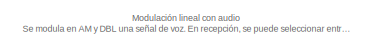
[diagram: root canvas - part 1/2, top left region]
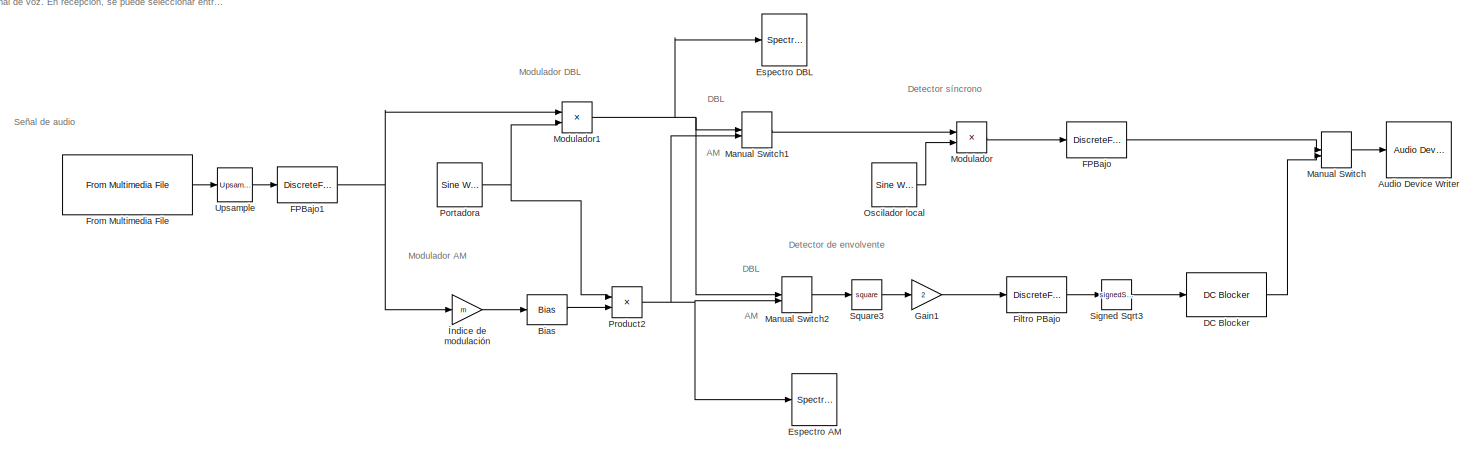
[diagram: root canvas - part 2/2, most of the canvas]
MODEL slx_1365be8a9c57
KIND model
CONFIG AbsTol = auto
CONFIG EnableMultiTasking = off
CONFIG FixedStep = auto
CONFIG MaxStep = auto
CONFIG MinStep = auto
CONFIG RelTol = 1e-3
CONFIG SampleTimeConstraint = Unconstrained
CONFIG SolverName = VariableStepAuto
CONFIG StartTime = 0.0
CONFIG StopTime = Inf
WORKSPACE source: mxarray member
WORKSPACE fp = 30000
WORKSPACE fs = 22050
WORKSPACE k = 5
WORKSPACE m = 0.8
BLOCK [Reference] Audio Device Writer  REF=dspsnks4/Audio Device
Writer
  SourceBlock = dspsnks4/Audio Device\nWriter
  SourceType = Audio Device Writer
BLOCK [Bias] Bias
  Bias = 1
  SaturateOnIntegerOverflow = off
BLOCK [Reference] DC Blocker  REF=dspsigops/DC Blocker
  SourceBlock = dspsigops/DC Blocker
  SourceType = dsp.simulink.DCBlocker
BLOCK [SpectrumAnalyzer] Espectro AM
  ScopeSpecificationString = spbscopes.SpectrumAnalyzerBlockCfg('CurrentConfiguration', extmgr.ConfigurationSet(extmgr.Configuration('Core','General UI',true),extmgr.Configuration('Core','Source UI',true),extmgr.Configuration('Sources','WiredSimulink',true),extmgr.Configuration('Visuals','Spectrum',true,'AxesProperties',struct('Color',{[0 0 0],[0 0 0]},'XColor',{[0.686274509803922 0.686274509803922 0.686274509803922],[0.68627...<+2162ch>
BLOCK [SpectrumAnalyzer] Espectro DBL
  ScopeSpecificationString = spbscopes.SpectrumAnalyzerBlockCfg('CurrentConfiguration', extmgr.ConfigurationSet(extmgr.Configuration('Core','General UI',true),extmgr.Configuration('Core','Source UI',true),extmgr.Configuration('Sources','WiredSimulink',true),extmgr.Configuration('Sources','SimulinkEvent',false),extmgr.Configuration('Sources','Simulink',false),extmgr.Configuration('Sources','File',false),extmgr.Configuration('S...<+3792ch>
BLOCK [DiscreteFilter] FPBajo
  Denominator = [1	-3.18248964930004	3.86534233322133	-2.11533582995995	0.439093724186097]
  InputPortMap = u0
  InputProcessing = Columns as channels (frame based)
  Numerator = [0.000413161134215036	0.00165264453686014	0.00247896680529022	0.00165264453686014	0.000413161134215036]
BLOCK [DiscreteFilter] FPBajo1
  Denominator = [1	-3.10848114066775	3.70178606768923	-1.99133310582666	0.407100188495131]
  InputPortMap = u0
  InputProcessing = Columns as channels (frame based)
  Numerator = [0.000567000605622080	0.00226800242248832	0.00340200363373248	0.00226800242248832	0.000567000605622080]
BLOCK [DiscreteFilter] Filtro PBajo
  Denominator = [1	-3.18248964930004	3.86534233322133	-2.11533582995995	0.439093724186097]
  InputPortMap = u0
  InputProcessing = Columns as channels (frame based)
  Numerator = [0.000413161134215036	0.00165264453686014	0.00247896680529022	0.00165264453686014	0.000413161134215036]
BLOCK [Reference] From Multimedia File  REF=dspvision/From Multimedia File
  SourceBlock = dspvision/From Multimedia File
  SourceType = From Multimedia File
BLOCK [Gain] Gain1
  Gain = 2
BLOCK [ManualSwitch] Manual Switch
BLOCK [ManualSwitch] Manual Switch1
  CurrentSetting = 0
BLOCK [ManualSwitch] Manual Switch2
BLOCK [Product] Modulador
  OutDataTypeStr = Inherit: Same as first input
BLOCK [Product] Modulador1
  OutDataTypeStr = Inherit: Same as first input
BLOCK [Reference] Oscilador local  REF=dspsrcs4/Sine Wave
  SourceBlock = dspsrcs4/Sine Wave
  SourceType = Sine Wave
BLOCK [Reference] Portadora  REF=dspsrcs4/Sine Wave
  SourceBlock = dspsrcs4/Sine Wave
  SourceType = Sine Wave
BLOCK [Product] Product2
  OutDataTypeStr = Inherit: Same as first input
BLOCK [Sqrt] Signed Sqrt3
  Operator = signedSqrt
BLOCK [Math] Square3
  Operator = square
BLOCK [Reference] Upsample  REF=dspsigops/Upsample
  SourceBlock = dspsigops/Upsample
  SourceType = Upsample
  UserDataPersistent = on
BLOCK [Gain] Índice de modulación 
  Gain = m
ANNOTATION (root): Modulación lineal con audio Se modula en AM y DBL una señal de voz. En recepción, se puede seleccionar entre detector síncrono o de envolvente, y escuchar el resultado.
ANNOTATION (root): AM
ANNOTATION (root): DBL
ANNOTATION (root): Detector de envolvente
ANNOTATION (root): Detector síncrono
ANNOTATION (root): Modulador AM
ANNOTATION (root): Modulador DBL
ANNOTATION (root): Señal de audio
LINE Bias:1 -> Product2:2
LINE DC Blocker:1 -> Manual Switch:2
NET FPBajo1:1 -> Modulador1:1, Índice de modulación :1
LINE FPBajo:1 -> Manual Switch:1
LINE Filtro PBajo:1 -> Signed Sqrt3:1
LINE From Multimedia File:1 -> Upsample:1
LINE Gain1:1 -> Filtro PBajo:1
LINE Manual Switch1:1 -> Modulador:1
LINE Manual Switch2:1 -> Square3:1
LINE Manual Switch:1 -> Audio Device Writer:1
NET Modulador1:1 -> Espectro DBL:1, Manual Switch1:1, Manual Switch2:1
LINE Modulador:1 -> FPBajo:1
LINE Oscilador local:1 -> Modulador:2
NET Portadora:1 -> Modulador1:2, Product2:1
NET Product2:1 -> Espectro AM:1, Manual Switch1:2, Manual Switch2:2
LINE Signed Sqrt3:1 -> DC Blocker:1
LINE Square3:1 -> Gain1:1
LINE Upsample:1 -> FPBajo1:1
LINE Índice de modulación :1 -> Bias:1
note: NET lines group one-source signal fan-out (src -> all destinations, sorted); 1:1 wires keep LINE
